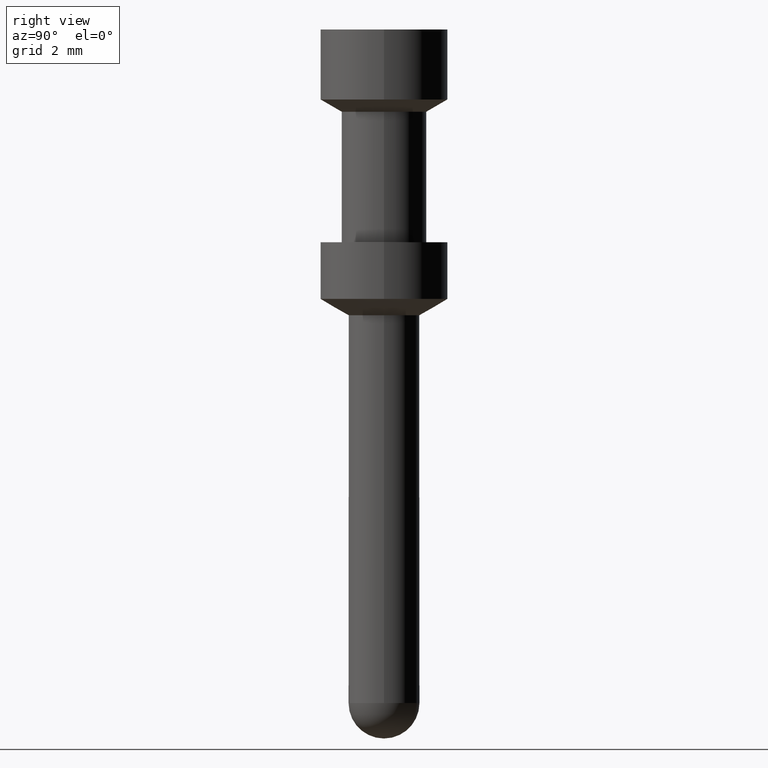
[diagram: clean part render]
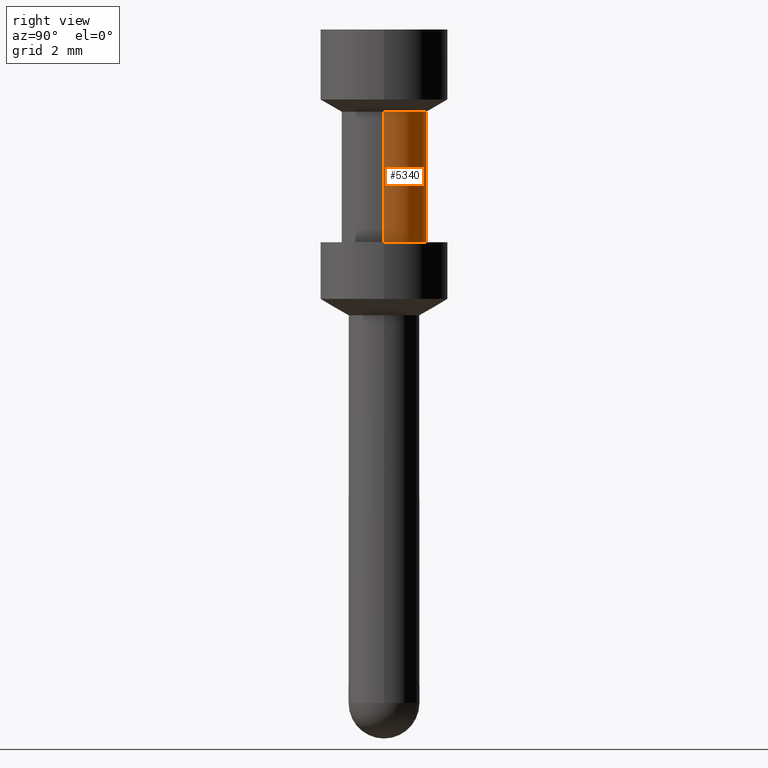
[diagram: same view with one face highlighted and labeled with its STEP entity id]
A machine part, right view. The second image highlights one B-rep face of the part: STEP entity #5340.
In plain terms, the highlighted cylindrical surface (partial cylindrical patch) has radius 1.5 mm, axis along (0, 0, -1).
Its self-contained STEP definition (entity closure, byte-faithful):
#60=CARTESIAN_POINT('',(33.587952,72.157183,-6.6));
#70=DIRECTION('',(0.,1.,1.83697019872103E-16));
#80=DIRECTION('',(1.,0.,0.));
#90=AXIS2_PLACEMENT_3D('',#60,#70,#80);
#100=CIRCLE('',#90,1.5);
#110=CARTESIAN_POINT('',(32.087952,72.157183,-6.6));
#120=VERTEX_POINT('',#110);
#130=CARTESIAN_POINT('',(35.087952,72.157183,-6.6));
#140=VERTEX_POINT('',#130);
#150=EDGE_CURVE('',#120,#140,#100,.T.);
#2020=CARTESIAN_POINT('',(32.087952,69.7272791894324,-6.6));
#2030=DIRECTION('',(0.,1.,1.83697019872103E-16));
#2040=VECTOR('',#2030,1.);
#2050=LINE('',#2020,#2040);
#2060=CARTESIAN_POINT('',(32.087952,67.557183,-6.6));
#2070=VERTEX_POINT('',#2060);
#2080=EDGE_CURVE('',#2070,#120,#2050,.T.);
#2100=CARTESIAN_POINT('',(33.587952,67.557183,-6.6));
#2110=DIRECTION('',(0.,-1.,-1.83697019872103E-16));
#2120=DIRECTION('',(-1.,9.66075982551395E-47,-5.25907270147341E-31));
#2130=AXIS2_PLACEMENT_3D('',#2100,#2110,#2120);
#2140=CIRCLE('',#2130,1.5);
#2150=CARTESIAN_POINT('',(35.087952,67.557183,-6.6));
#2160=VERTEX_POINT('',#2150);
#2190=CARTESIAN_POINT('',(35.087952,69.7272791894324,-6.6));
#2200=DIRECTION('',(0.,1.,1.83697019872103E-16));
#2210=VECTOR('',#2200,1.);
#2220=LINE('',#2190,#2210);
#2230=EDGE_CURVE('',#2160,#140,#2220,.T.);
#5220=CARTESIAN_POINT('',(33.587952,69.7272791894324,-6.6));
#5230=DIRECTION('',(0.,1.,1.83697019872103E-16));
#5240=DIRECTION('',(1.,0.,0.));
#5250=AXIS2_PLACEMENT_3D('',#5220,#5230,#5240);
#5260=CYLINDRICAL_SURFACE('',#5250,1.5);
#5270=EDGE_CURVE('',#2160,#2070,#2140,.T.);
#5280=ORIENTED_EDGE('',*,*,#5270,.F.);
#5290=ORIENTED_EDGE('',*,*,#2080,.F.);
#5300=ORIENTED_EDGE('',*,*,#150,.F.);
#5310=ORIENTED_EDGE('',*,*,#2230,.T.);
#5320=EDGE_LOOP('',(#5310,#5300,#5290,#5280));
#5330=FACE_OUTER_BOUND('',#5320,.T.);
#5340=ADVANCED_FACE('',(#5330),#5260,.T.);